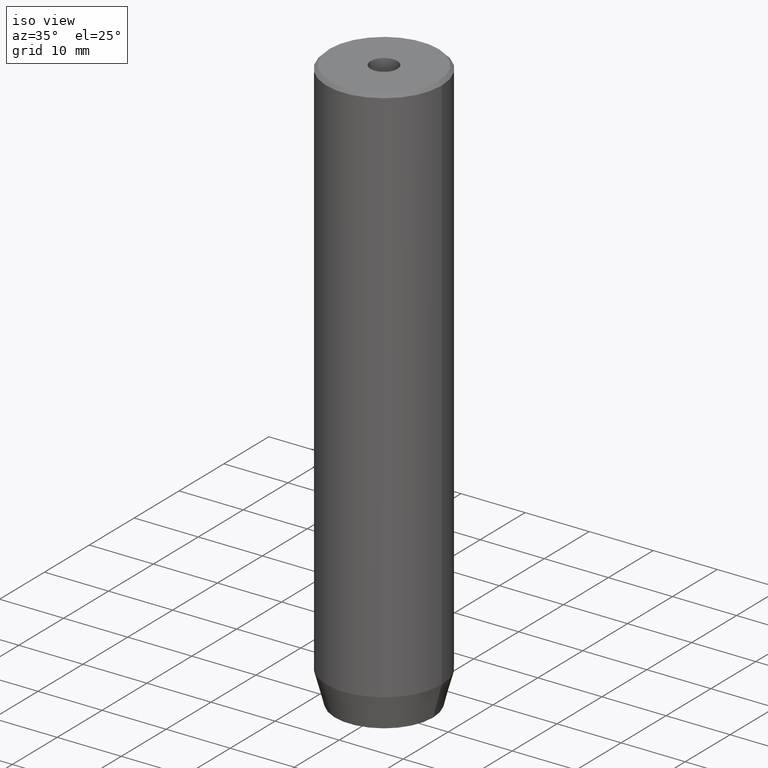
[diagram: clean part render]
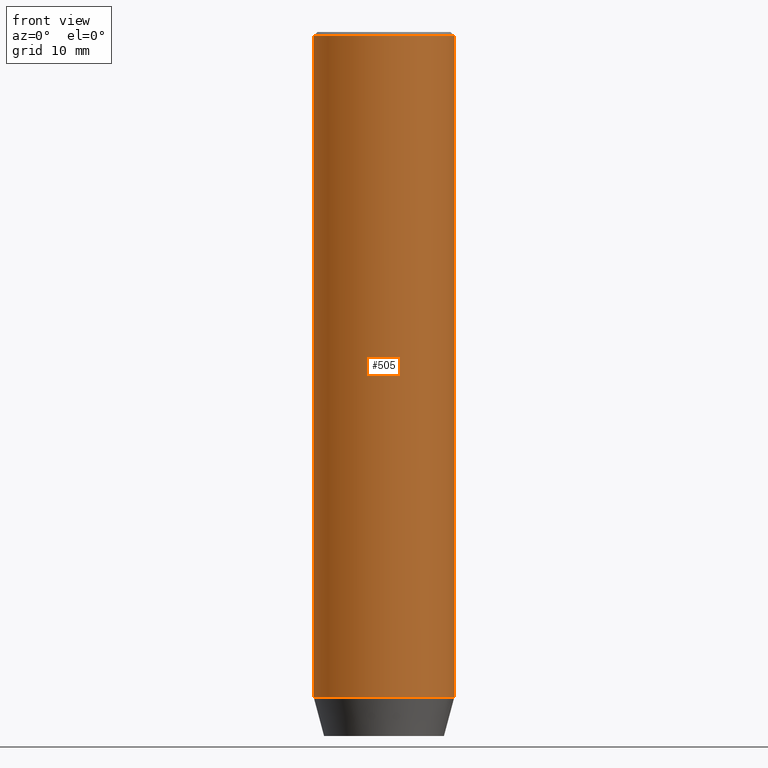
[diagram: tour spotlight — one face highlighted and labeled with its STEP entity id]
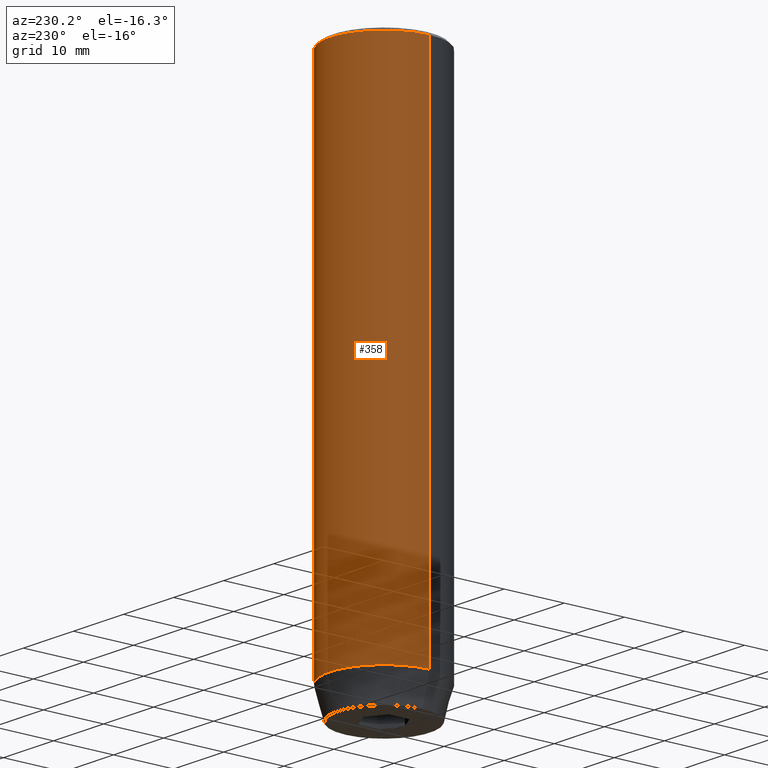
[diagram: tour spotlight — one face highlighted and labeled with its STEP entity id]
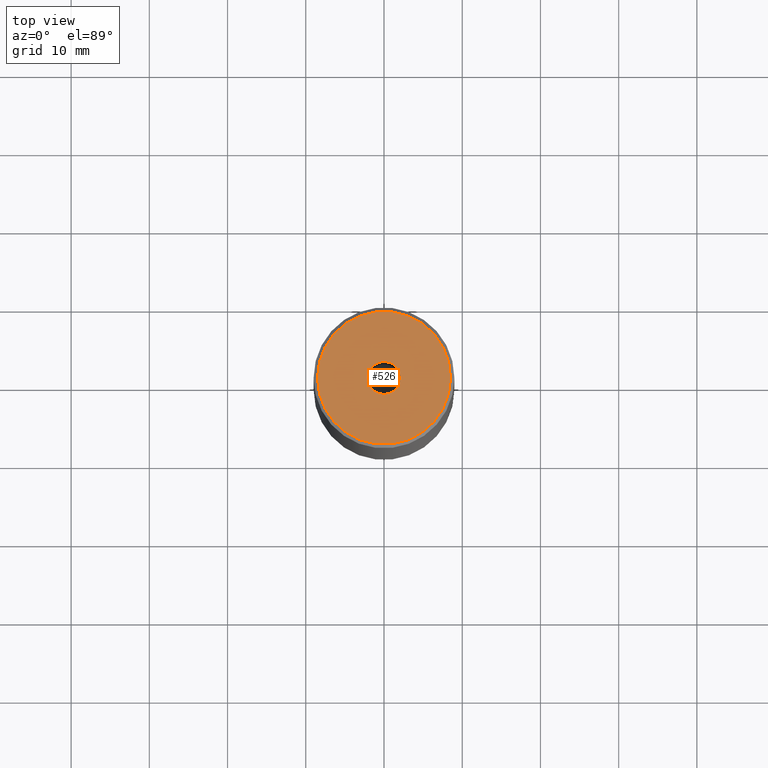
[diagram: tour spotlight — one face highlighted and labeled with its STEP entity id]
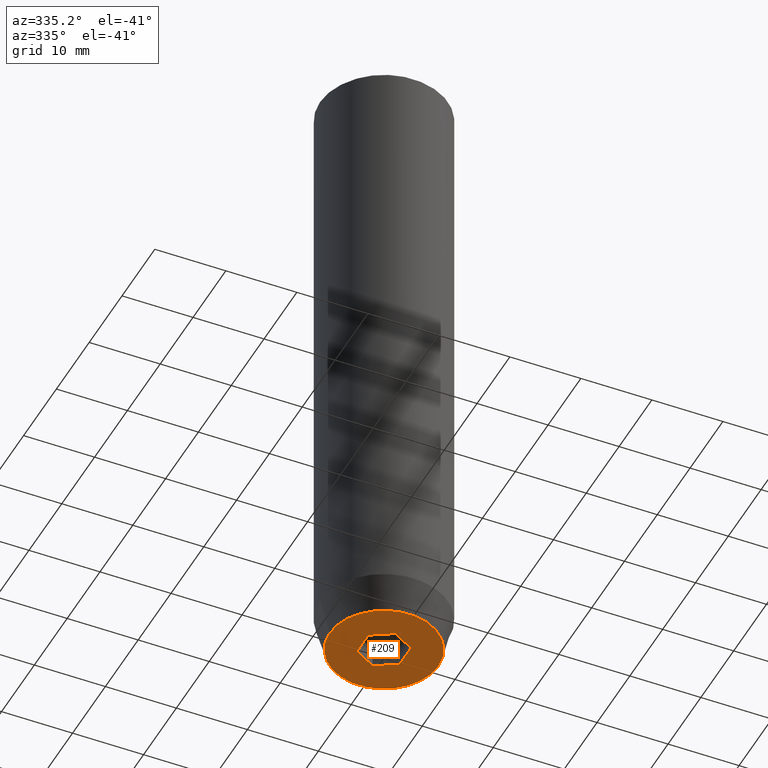
[diagram: tour spotlight — one face highlighted and labeled with its STEP entity id]
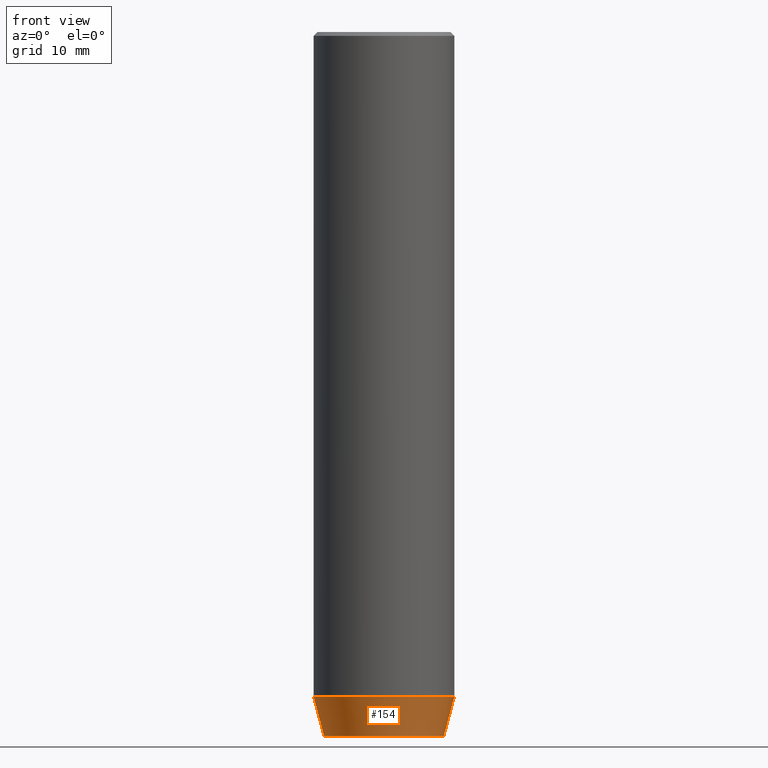
[diagram: tour spotlight — one face highlighted and labeled with its STEP entity id]
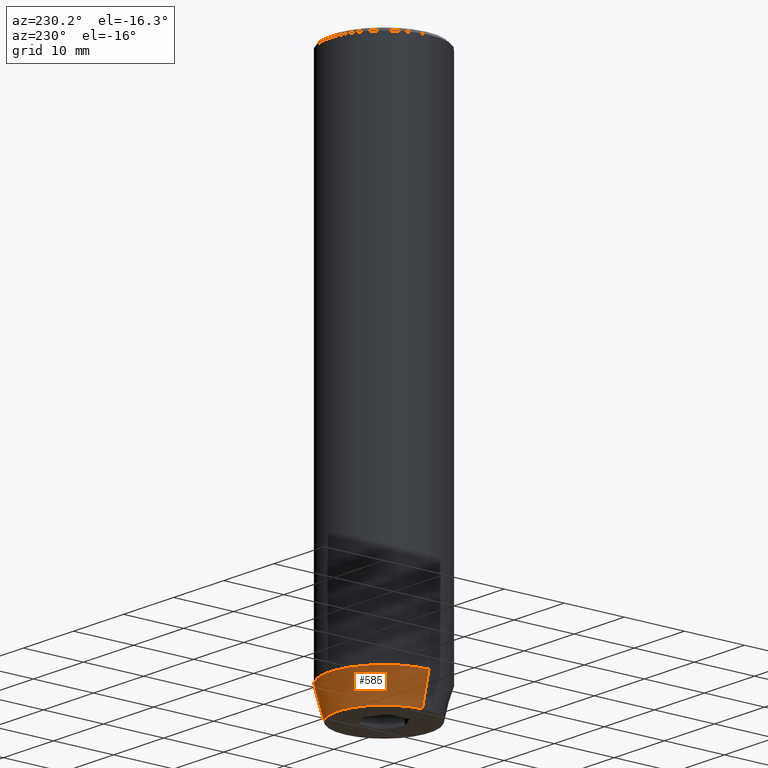
[diagram: tour spotlight — one face highlighted and labeled with its STEP entity id]
A machine part: a face-by-face anatomy tour. The part has 19 B-rep faces; the first image is the clean iso view, then the 6 largest visible faces are spotlighted one at a time (largest first), each with its STEP entity span.

Face 1 — front view, entity #505. In plain terms, the highlighted cylindrical surface (partial cylindrical patch) has radius 9 mm, axis along (-0, -0, 1).
Definition (entity closure, byte-faithful):
#2 = EDGE_LOOP ( 'NONE', ( #330, #153, #549, #481 ) ) ;
#9 = CARTESIAN_POINT ( 'NONE',  ( -9.000000000000000000, 1.102182119232617714E-15, -84.99999999999998579 ) ) ;
#20 = AXIS2_PLACEMENT_3D ( 'NONE', #303, #262, #491 ) ;
#21 = CARTESIAN_POINT ( 'NONE',  ( 9.000000000000000000, 0.000000000000000000, -0.4999999999999952260 ) ) ;
#89 = DIRECTION ( 'NONE',  ( 1.000000000000000000, 0.000000000000000000, 0.000000000000000000 ) ) ;
#91 = VECTOR ( 'NONE', #223, 1000.000000000000000 ) ;
#100 = CARTESIAN_POINT ( 'NONE',  ( -9.000000000000000000, 1.102182119232617714E-15, 0.000000000000000000 ) ) ;
#147 = VECTOR ( 'NONE', #197, 1000.000000000000000 ) ;
#153 = ORIENTED_EDGE ( 'NONE', *, *, #333, .T. ) ;
#156 = VERTEX_POINT ( 'NONE', #9 ) ;
#160 = CYLINDRICAL_SURFACE ( 'NONE', #332, 9.000000000000000000 ) ;
#170 = DIRECTION ( 'NONE',  ( -0.000000000000000000, -0.000000000000000000, 1.000000000000000000 ) ) ;
#171 = CARTESIAN_POINT ( 'NONE',  ( -9.000000000000000000, 1.102182119232617714E-15, -0.4999999999999952260 ) ) ;
#172 = EDGE_CURVE ( 'NONE', #515, #503, #383, .T. ) ;
#197 = DIRECTION ( 'NONE',  ( -0.000000000000000000, -0.000000000000000000, 1.000000000000000000 ) ) ;
#208 = CARTESIAN_POINT ( 'NONE',  ( 9.000000000000000000, 0.000000000000000000, -84.99999999999998579 ) ) ;
#223 = DIRECTION ( 'NONE',  ( -0.000000000000000000, -0.000000000000000000, 1.000000000000000000 ) ) ;
#262 = DIRECTION ( 'NONE',  ( -0.000000000000000000, -0.000000000000000000, 1.000000000000000000 ) ) ;
#269 = CIRCLE ( 'NONE', #409, 9.000000000000000000 ) ;
#276 = LINE ( 'NONE', #100, #91 ) ;
#303 = CARTESIAN_POINT ( 'NONE',  ( 0.000000000000000000, 0.000000000000000000, -84.99999999999998579 ) ) ;
#323 = VERTEX_POINT ( 'NONE', #171 ) ;
#330 = ORIENTED_EDGE ( 'NONE', *, *, #396, .F. ) ;
#332 = AXIS2_PLACEMENT_3D ( 'NONE', #475, #170, #336 ) ;
#333 = EDGE_CURVE ( 'NONE', #156, #515, #537, .T. ) ;
#336 = DIRECTION ( 'NONE',  ( 1.000000000000000000, 0.000000000000000000, 0.000000000000000000 ) ) ;
#383 = LINE ( 'NONE', #416, #147 ) ;
#389 = CARTESIAN_POINT ( 'NONE',  ( 0.000000000000000000, 0.000000000000000000, -0.4999999999999952260 ) ) ;
#396 = EDGE_CURVE ( 'NONE', #156, #323, #276, .T. ) ;
#409 = AXIS2_PLACEMENT_3D ( 'NONE', #389, #572, #89 ) ;
#416 = CARTESIAN_POINT ( 'NONE',  ( 9.000000000000000000, 0.000000000000000000, 0.000000000000000000 ) ) ;
#475 = CARTESIAN_POINT ( 'NONE',  ( 0.000000000000000000, 0.000000000000000000, 0.000000000000000000 ) ) ;
#481 = ORIENTED_EDGE ( 'NONE', *, *, #534, .T. ) ;
#491 = DIRECTION ( 'NONE',  ( 1.000000000000000000, 0.000000000000000000, 0.000000000000000000 ) ) ;
#503 = VERTEX_POINT ( 'NONE', #21 ) ;
#505 = ADVANCED_FACE ( 'NONE', ( #533 ), #160, .T. ) ;
#515 = VERTEX_POINT ( 'NONE', #208 ) ;
#533 = FACE_OUTER_BOUND ( 'NONE', #2, .T. ) ;
#534 = EDGE_CURVE ( 'NONE', #503, #323, #269, .T. ) ;
#537 = CIRCLE ( 'NONE', #20, 9.000000000000000000 ) ;
#549 = ORIENTED_EDGE ( 'NONE', *, *, #172, .T. ) ;
#572 = DIRECTION ( 'NONE',  ( 0.000000000000000000, 0.000000000000000000, -1.000000000000000000 ) ) ;

Face 2 — auxiliary view, entity #358. In plain terms, the highlighted cylindrical surface (partial cylindrical patch) has radius 9 mm, axis along (-0, -0, 1).
Definition (entity closure, byte-faithful):
#9 = CARTESIAN_POINT ( 'NONE',  ( -9.000000000000000000, 1.102182119232617714E-15, -84.99999999999998579 ) ) ;
#21 = CARTESIAN_POINT ( 'NONE',  ( 9.000000000000000000, 0.000000000000000000, -0.4999999999999952260 ) ) ;
#26 = CYLINDRICAL_SURFACE ( 'NONE', #324, 9.000000000000000000 ) ;
#39 = FACE_OUTER_BOUND ( 'NONE', #291, .T. ) ;
#62 = AXIS2_PLACEMENT_3D ( 'NONE', #340, #522, #72 ) ;
#72 = DIRECTION ( 'NONE',  ( 1.000000000000000000, 0.000000000000000000, 0.000000000000000000 ) ) ;
#91 = VECTOR ( 'NONE', #223, 1000.000000000000000 ) ;
#100 = CARTESIAN_POINT ( 'NONE',  ( -9.000000000000000000, 1.102182119232617714E-15, 0.000000000000000000 ) ) ;
#147 = VECTOR ( 'NONE', #197, 1000.000000000000000 ) ;
#156 = VERTEX_POINT ( 'NONE', #9 ) ;
#164 = DIRECTION ( 'NONE',  ( -0.000000000000000000, -0.000000000000000000, 1.000000000000000000 ) ) ;
#168 = AXIS2_PLACEMENT_3D ( 'NONE', #575, #307, #478 ) ;
#171 = CARTESIAN_POINT ( 'NONE',  ( -9.000000000000000000, 1.102182119232617714E-15, -0.4999999999999952260 ) ) ;
#172 = EDGE_CURVE ( 'NONE', #515, #503, #383, .T. ) ;
#197 = DIRECTION ( 'NONE',  ( -0.000000000000000000, -0.000000000000000000, 1.000000000000000000 ) ) ;
#207 = ORIENTED_EDGE ( 'NONE', *, *, #172, .F. ) ;
#208 = CARTESIAN_POINT ( 'NONE',  ( 9.000000000000000000, 0.000000000000000000, -84.99999999999998579 ) ) ;
#223 = DIRECTION ( 'NONE',  ( -0.000000000000000000, -0.000000000000000000, 1.000000000000000000 ) ) ;
#246 = ORIENTED_EDGE ( 'NONE', *, *, #420, .T. ) ;
#276 = LINE ( 'NONE', #100, #91 ) ;
#291 = EDGE_LOOP ( 'NONE', ( #492, #417, #246, #207 ) ) ;
#307 = DIRECTION ( 'NONE',  ( -0.000000000000000000, -0.000000000000000000, 1.000000000000000000 ) ) ;
#317 = EDGE_CURVE ( 'NONE', #515, #156, #382, .T. ) ;
#323 = VERTEX_POINT ( 'NONE', #171 ) ;
#324 = AXIS2_PLACEMENT_3D ( 'NONE', #349, #164, #397 ) ;
#340 = CARTESIAN_POINT ( 'NONE',  ( 0.000000000000000000, 0.000000000000000000, -0.4999999999999952260 ) ) ;
#349 = CARTESIAN_POINT ( 'NONE',  ( 0.000000000000000000, 0.000000000000000000, 0.000000000000000000 ) ) ;
#358 = ADVANCED_FACE ( 'NONE', ( #39 ), #26, .T. ) ;
#382 = CIRCLE ( 'NONE', #168, 9.000000000000000000 ) ;
#383 = LINE ( 'NONE', #416, #147 ) ;
#396 = EDGE_CURVE ( 'NONE', #156, #323, #276, .T. ) ;
#397 = DIRECTION ( 'NONE',  ( 1.000000000000000000, 0.000000000000000000, 0.000000000000000000 ) ) ;
#416 = CARTESIAN_POINT ( 'NONE',  ( 9.000000000000000000, 0.000000000000000000, 0.000000000000000000 ) ) ;
#417 = ORIENTED_EDGE ( 'NONE', *, *, #396, .T. ) ;
#420 = EDGE_CURVE ( 'NONE', #323, #503, #499, .T. ) ;
#478 = DIRECTION ( 'NONE',  ( 1.000000000000000000, 0.000000000000000000, 0.000000000000000000 ) ) ;
#492 = ORIENTED_EDGE ( 'NONE', *, *, #317, .T. ) ;
#499 = CIRCLE ( 'NONE', #62, 9.000000000000000000 ) ;
#503 = VERTEX_POINT ( 'NONE', #21 ) ;
#515 = VERTEX_POINT ( 'NONE', #208 ) ;
#522 = DIRECTION ( 'NONE',  ( 0.000000000000000000, 0.000000000000000000, -1.000000000000000000 ) ) ;
#575 = CARTESIAN_POINT ( 'NONE',  ( 0.000000000000000000, 0.000000000000000000, -84.99999999999998579 ) ) ;

Face 3 — top view, entity #526. In plain terms, the highlighted planar face has unit normal (0, -0, 1).
Definition (entity closure, byte-faithful):
#1 = CIRCLE ( 'NONE', #299, 8.500000000000007105 ) ;
#5 = ORIENTED_EDGE ( 'NONE', *, *, #108, .T. ) ;
#14 = DIRECTION ( 'NONE',  ( -0.000000000000000000, -0.000000000000000000, 1.000000000000000000 ) ) ;
#15 = EDGE_CURVE ( 'NONE', #277, #500, #61, .T. ) ;
#61 = CIRCLE ( 'NONE', #578, 2.099999999999998757 ) ;
#67 = DIRECTION ( 'NONE',  ( 1.000000000000000000, 0.000000000000000000, 0.000000000000000000 ) ) ;
#75 = DIRECTION ( 'NONE',  ( 0.000000000000000000, -0.000000000000000000, 1.000000000000000000 ) ) ;
#97 = ORIENTED_EDGE ( 'NONE', *, *, #188, .F. ) ;
#99 = CIRCLE ( 'NONE', #109, 2.099999999999998757 ) ;
#104 = ORIENTED_EDGE ( 'NONE', *, *, #210, .T. ) ;
#108 = EDGE_CURVE ( 'NONE', #506, #452, #1, .T. ) ;
#109 = AXIS2_PLACEMENT_3D ( 'NONE', #114, #292, #473 ) ;
#114 = CARTESIAN_POINT ( 'NONE',  ( 0.000000000000000000, 0.000000000000000000, -1.990051048614449116E-16 ) ) ;
#123 = CARTESIAN_POINT ( 'NONE',  ( -8.500000000000007105, 0.000000000000000000, 0.000000000000000000 ) ) ;
#125 = PLANE ( 'NONE',  #531 ) ;
#148 = CARTESIAN_POINT ( 'NONE',  ( 8.500000000000007105, 1.071565949253934321E-15, 0.000000000000000000 ) ) ;
#163 = FACE_OUTER_BOUND ( 'NONE', #343, .T. ) ;
#188 = EDGE_CURVE ( 'NONE', #500, #277, #99, .T. ) ;
#210 = EDGE_CURVE ( 'NONE', #452, #506, #218, .T. ) ;
#212 = CARTESIAN_POINT ( 'NONE',  ( 2.099999999999998757, 0.000000000000000000, -1.990051048614449116E-16 ) ) ;
#214 = DIRECTION ( 'NONE',  ( 1.000000000000000000, 0.000000000000000000, 0.000000000000000000 ) ) ;
#218 = CIRCLE ( 'NONE', #448, 8.500000000000007105 ) ;
#254 = CARTESIAN_POINT ( 'NONE',  ( -2.099999999999998757, 2.571758278209440478E-16, -1.990051048614449116E-16 ) ) ;
#277 = VERTEX_POINT ( 'NONE', #254 ) ;
#280 = EDGE_LOOP ( 'NONE', ( #97, #525 ) ) ;
#292 = DIRECTION ( 'NONE',  ( -0.000000000000000000, -0.000000000000000000, 1.000000000000000000 ) ) ;
#299 = AXIS2_PLACEMENT_3D ( 'NONE', #422, #14, #565 ) ;
#312 = DIRECTION ( 'NONE',  ( 1.000000000000000000, 0.000000000000000000, 0.000000000000000000 ) ) ;
#343 = EDGE_LOOP ( 'NONE', ( #5, #104 ) ) ;
#366 = CARTESIAN_POINT ( 'NONE',  ( 0.000000000000000000, 0.000000000000000000, -1.990051048614449116E-16 ) ) ;
#379 = CARTESIAN_POINT ( 'NONE',  ( 0.000000000000000000, 0.000000000000000000, 0.000000000000000000 ) ) ;
#422 = CARTESIAN_POINT ( 'NONE',  ( 0.000000000000000000, 0.000000000000000000, 0.000000000000000000 ) ) ;
#431 = FACE_BOUND ( 'NONE', #280, .T. ) ;
#448 = AXIS2_PLACEMENT_3D ( 'NONE', #379, #559, #67 ) ;
#452 = VERTEX_POINT ( 'NONE', #148 ) ;
#473 = DIRECTION ( 'NONE',  ( 1.000000000000000000, 0.000000000000000000, 0.000000000000000000 ) ) ;
#479 = CARTESIAN_POINT ( 'NONE',  ( 0.000000000000000000, 0.000000000000000000, 0.000000000000000000 ) ) ;
#500 = VERTEX_POINT ( 'NONE', #212 ) ;
#506 = VERTEX_POINT ( 'NONE', #123 ) ;
#525 = ORIENTED_EDGE ( 'NONE', *, *, #15, .F. ) ;
#526 = ADVANCED_FACE ( 'NONE', ( #431, #163 ), #125, .T. ) ;
#531 = AXIS2_PLACEMENT_3D ( 'NONE', #479, #75, #214 ) ;
#548 = DIRECTION ( 'NONE',  ( -0.000000000000000000, -0.000000000000000000, 1.000000000000000000 ) ) ;
#559 = DIRECTION ( 'NONE',  ( -0.000000000000000000, -0.000000000000000000, 1.000000000000000000 ) ) ;
#565 = DIRECTION ( 'NONE',  ( 1.000000000000000000, 0.000000000000000000, 0.000000000000000000 ) ) ;
#578 = AXIS2_PLACEMENT_3D ( 'NONE', #366, #548, #312 ) ;

Face 4 — auxiliary view, entity #209. In plain terms, the highlighted planar face has unit normal (0, 0, -1).
Definition (entity closure, byte-faithful):
#7 = DIRECTION ( 'NONE',  ( -0.8660254037844385966, -0.5000000000000001110, 0.000000000000000000 ) ) ;
#30 = VECTOR ( 'NONE', #7, 1000.000000000000000 ) ;
#37 = EDGE_CURVE ( 'NONE', #190, #355, #390, .T. ) ;
#45 = EDGE_CURVE ( 'NONE', #586, #294, #360, .T. ) ;
#63 = ORIENTED_EDGE ( 'NONE', *, *, #232, .F. ) ;
#64 = DIRECTION ( 'NONE',  ( 0.000000000000000000, 0.000000000000000000, -1.000000000000000000 ) ) ;
#115 = EDGE_LOOP ( 'NONE', ( #263, #328, #251, #134, #373, #455 ) ) ;
#127 = CARTESIAN_POINT ( 'NONE',  ( -3.000000000000000444, -7.511572993685800087E-16, -90.00000000000000000 ) ) ;
#129 = DIRECTION ( 'NONE',  ( -0.000000000000000000, -0.000000000000000000, 1.000000000000000000 ) ) ;
#134 = ORIENTED_EDGE ( 'NONE', *, *, #412, .F. ) ;
#135 = VECTOR ( 'NONE', #357, 1000.000000000000000 ) ;
#136 = VECTOR ( 'NONE', #444, 1000.000000000000000 ) ;
#140 = VERTEX_POINT ( 'NONE', #419 ) ;
#157 = CIRCLE ( 'NONE', #467, 7.660254037844380193 ) ;
#173 = DIRECTION ( 'NONE',  ( 0.8660254037844387076, 0.4999999999999999445, 0.000000000000000000 ) ) ;
#176 = AXIS2_PLACEMENT_3D ( 'NONE', #179, #508, #234 ) ;
#179 = CARTESIAN_POINT ( 'NONE',  ( 0.000000000000000000, 0.000000000000000000, -90.00000000000000000 ) ) ;
#190 = VERTEX_POINT ( 'NONE', #469 ) ;
#203 = ORIENTED_EDGE ( 'NONE', *, *, #37, .F. ) ;
#205 = AXIS2_PLACEMENT_3D ( 'NONE', #516, #64, #337 ) ;
#206 = LINE ( 'NONE', #568, #407 ) ;
#209 = ADVANCED_FACE ( 'NONE', ( #286, #327 ), #329, .T. ) ;
#229 = EDGE_CURVE ( 'NONE', #367, #586, #206, .T. ) ;
#232 = EDGE_CURVE ( 'NONE', #355, #190, #157, .T. ) ;
#234 = DIRECTION ( 'NONE',  ( 1.000000000000000000, 0.000000000000000000, 0.000000000000000000 ) ) ;
#248 = LINE ( 'NONE', #344, #401 ) ;
#251 = ORIENTED_EDGE ( 'NONE', *, *, #524, .F. ) ;
#263 = ORIENTED_EDGE ( 'NONE', *, *, #229, .F. ) ;
#264 = CARTESIAN_POINT ( 'NONE',  ( -7.660254037844380193, 1.020146339021394272E-15, -90.00000000000000000 ) ) ;
#267 = CARTESIAN_POINT ( 'NONE',  ( 1.500000000000000222, 2.598076211353315568, -90.00000000000000000 ) ) ;
#283 = CARTESIAN_POINT ( 'NONE',  ( 3.000000000000000000, -1.732050807568876527, -90.00000000000000000 ) ) ;
#286 = FACE_BOUND ( 'NONE', #115, .T. ) ;
#294 = VERTEX_POINT ( 'NONE', #310 ) ;
#302 = DIRECTION ( 'NONE',  ( -0.8660254037844385966, 0.5000000000000001110, 0.000000000000000000 ) ) ;
#306 = CARTESIAN_POINT ( 'NONE',  ( 0.000000000000000000, 3.464101615137754386, -90.00000000000000000 ) ) ;
#310 = CARTESIAN_POINT ( 'NONE',  ( 3.000000000000000000, 1.732050807568876527, -90.00000000000000000 ) ) ;
#327 = FACE_OUTER_BOUND ( 'NONE', #517, .T. ) ;
#328 = ORIENTED_EDGE ( 'NONE', *, *, #564, .F. ) ;
#329 = PLANE ( 'NONE',  #205 ) ;
#337 = DIRECTION ( 'NONE',  ( -1.000000000000000000, 0.000000000000000000, -0.000000000000000000 ) ) ;
#342 = CARTESIAN_POINT ( 'NONE',  ( -3.000000000000000888, 1.732050807568876527, -90.00000000000000000 ) ) ;
#344 = CARTESIAN_POINT ( 'NONE',  ( 3.000000000000000000, 0.000000000000000000, -90.00000000000000000 ) ) ;
#348 = DIRECTION ( 'NONE',  ( 0.000000000000000000, -1.000000000000000000, 0.000000000000000000 ) ) ;
#350 = CARTESIAN_POINT ( 'NONE',  ( -3.000000000000000000, -1.732050807568877859, -90.00000000000000000 ) ) ;
#355 = VERTEX_POINT ( 'NONE', #264 ) ;
#357 = DIRECTION ( 'NONE',  ( 0.8660254037844385966, -0.5000000000000001110, 0.000000000000000000 ) ) ;
#360 = LINE ( 'NONE', #267, #135 ) ;
#367 = VERTEX_POINT ( 'NONE', #342 ) ;
#373 = ORIENTED_EDGE ( 'NONE', *, *, #485, .F. ) ;
#386 = CARTESIAN_POINT ( 'NONE',  ( 0.000000000000000000, 0.000000000000000000, -90.00000000000000000 ) ) ;
#390 = CIRCLE ( 'NONE', #176, 7.660254037844380193 ) ;
#401 = VECTOR ( 'NONE', #348, 1000.000000000000000 ) ;
#407 = VECTOR ( 'NONE', #173, 999.9999999999998863 ) ;
#412 = EDGE_CURVE ( 'NONE', #495, #140, #497, .T. ) ;
#413 = LINE ( 'NONE', #567, #544 ) ;
#419 = CARTESIAN_POINT ( 'NONE',  ( -2.168404344971008868E-16, -3.464101615137754830, -90.00000000000000000 ) ) ;
#444 = DIRECTION ( 'NONE',  ( -2.503857664561932376E-16, 1.000000000000000000, 0.000000000000000000 ) ) ;
#455 = ORIENTED_EDGE ( 'NONE', *, *, #45, .F. ) ;
#467 = AXIS2_PLACEMENT_3D ( 'NONE', #386, #129, #576 ) ;
#469 = CARTESIAN_POINT ( 'NONE',  ( 7.660254037844380193, 0.000000000000000000, -90.00000000000000000 ) ) ;
#485 = EDGE_CURVE ( 'NONE', #294, #495, #248, .T. ) ;
#486 = LINE ( 'NONE', #127, #136 ) ;
#495 = VERTEX_POINT ( 'NONE', #283 ) ;
#497 = LINE ( 'NONE', #553, #30 ) ;
#508 = DIRECTION ( 'NONE',  ( -0.000000000000000000, -0.000000000000000000, 1.000000000000000000 ) ) ;
#516 = CARTESIAN_POINT ( 'NONE',  ( 0.000000000000000000, 7.660254037844380193, -90.00000000000000000 ) ) ;
#517 = EDGE_LOOP ( 'NONE', ( #203, #63 ) ) ;
#524 = EDGE_CURVE ( 'NONE', #140, #560, #413, .T. ) ;
#544 = VECTOR ( 'NONE', #302, 1000.000000000000000 ) ;
#553 = CARTESIAN_POINT ( 'NONE',  ( 1.500000000000000222, -2.598076211353315568, -90.00000000000000000 ) ) ;
#560 = VERTEX_POINT ( 'NONE', #350 ) ;
#564 = EDGE_CURVE ( 'NONE', #560, #367, #486, .T. ) ;
#567 = CARTESIAN_POINT ( 'NONE',  ( -1.500000000000000666, -2.598076211353316456, -90.00000000000000000 ) ) ;
#568 = CARTESIAN_POINT ( 'NONE',  ( -1.499999999999999556, 2.598076211353316012, -90.00000000000000000 ) ) ;
#576 = DIRECTION ( 'NONE',  ( 1.000000000000000000, 0.000000000000000000, 0.000000000000000000 ) ) ;
#586 = VERTEX_POINT ( 'NONE', #306 ) ;

Face 5 — front view, entity #154. In plain terms, the highlighted conical surface has half-angle 15 deg.
Definition (entity closure, byte-faithful):
#8 = CARTESIAN_POINT ( 'NONE',  ( -9.000000000000000000, 1.102182119232617714E-15, -84.99999999999998579 ) ) ;
#9 = CARTESIAN_POINT ( 'NONE',  ( -9.000000000000000000, 1.102182119232617714E-15, -84.99999999999998579 ) ) ;
#20 = AXIS2_PLACEMENT_3D ( 'NONE', #303, #262, #491 ) ;
#29 = VECTOR ( 'NONE', #538, 1000.000000000000114 ) ;
#38 = EDGE_CURVE ( 'NONE', #355, #156, #181, .T. ) ;
#55 = ORIENTED_EDGE ( 'NONE', *, *, #333, .F. ) ;
#88 = DIRECTION ( 'NONE',  ( -0.2588190451025214611, 3.169619151431774186E-17, 0.9659258262890679791 ) ) ;
#120 = ORIENTED_EDGE ( 'NONE', *, *, #38, .F. ) ;
#129 = DIRECTION ( 'NONE',  ( -0.000000000000000000, -0.000000000000000000, 1.000000000000000000 ) ) ;
#154 = ADVANCED_FACE ( 'NONE', ( #240 ), #288, .T. ) ;
#155 = CARTESIAN_POINT ( 'NONE',  ( 0.000000000000000000, 0.000000000000000000, -84.99999999999998579 ) ) ;
#156 = VERTEX_POINT ( 'NONE', #9 ) ;
#157 = CIRCLE ( 'NONE', #467, 7.660254037844380193 ) ;
#181 = LINE ( 'NONE', #8, #260 ) ;
#184 = ORIENTED_EDGE ( 'NONE', *, *, #232, .T. ) ;
#190 = VERTEX_POINT ( 'NONE', #469 ) ;
#208 = CARTESIAN_POINT ( 'NONE',  ( 9.000000000000000000, 0.000000000000000000, -84.99999999999998579 ) ) ;
#232 = EDGE_CURVE ( 'NONE', #355, #190, #157, .T. ) ;
#235 = DIRECTION ( 'NONE',  ( 1.000000000000000000, 0.000000000000000000, 0.000000000000000000 ) ) ;
#240 = FACE_OUTER_BOUND ( 'NONE', #281, .T. ) ;
#260 = VECTOR ( 'NONE', #88, 1000.000000000000114 ) ;
#262 = DIRECTION ( 'NONE',  ( -0.000000000000000000, -0.000000000000000000, 1.000000000000000000 ) ) ;
#264 = CARTESIAN_POINT ( 'NONE',  ( -7.660254037844380193, 1.020146339021394272E-15, -90.00000000000000000 ) ) ;
#270 = ORIENTED_EDGE ( 'NONE', *, *, #295, .T. ) ;
#281 = EDGE_LOOP ( 'NONE', ( #120, #184, #270, #55 ) ) ;
#288 = CONICAL_SURFACE ( 'NONE', #345, 9.000000000000000000, 0.2617993877991502405 ) ;
#290 = DIRECTION ( 'NONE',  ( -0.000000000000000000, -0.000000000000000000, 1.000000000000000000 ) ) ;
#295 = EDGE_CURVE ( 'NONE', #190, #515, #432, .T. ) ;
#303 = CARTESIAN_POINT ( 'NONE',  ( 0.000000000000000000, 0.000000000000000000, -84.99999999999998579 ) ) ;
#333 = EDGE_CURVE ( 'NONE', #156, #515, #537, .T. ) ;
#345 = AXIS2_PLACEMENT_3D ( 'NONE', #155, #290, #235 ) ;
#355 = VERTEX_POINT ( 'NONE', #264 ) ;
#386 = CARTESIAN_POINT ( 'NONE',  ( 0.000000000000000000, 0.000000000000000000, -90.00000000000000000 ) ) ;
#388 = CARTESIAN_POINT ( 'NONE',  ( 9.000000000000000000, 0.000000000000000000, -84.99999999999998579 ) ) ;
#432 = LINE ( 'NONE', #388, #29 ) ;
#467 = AXIS2_PLACEMENT_3D ( 'NONE', #386, #129, #576 ) ;
#469 = CARTESIAN_POINT ( 'NONE',  ( 7.660254037844380193, 0.000000000000000000, -90.00000000000000000 ) ) ;
#491 = DIRECTION ( 'NONE',  ( 1.000000000000000000, 0.000000000000000000, 0.000000000000000000 ) ) ;
#515 = VERTEX_POINT ( 'NONE', #208 ) ;
#537 = CIRCLE ( 'NONE', #20, 9.000000000000000000 ) ;
#538 = DIRECTION ( 'NONE',  ( 0.2588190451025214611, 0.000000000000000000, 0.9659258262890679791 ) ) ;
#576 = DIRECTION ( 'NONE',  ( 1.000000000000000000, 0.000000000000000000, 0.000000000000000000 ) ) ;

Face 6 — auxiliary view, entity #585. In plain terms, the highlighted conical surface has half-angle 15 deg.
Definition (entity closure, byte-faithful):
#8 = CARTESIAN_POINT ( 'NONE',  ( -9.000000000000000000, 1.102182119232617714E-15, -84.99999999999998579 ) ) ;
#9 = CARTESIAN_POINT ( 'NONE',  ( -9.000000000000000000, 1.102182119232617714E-15, -84.99999999999998579 ) ) ;
#10 = AXIS2_PLACEMENT_3D ( 'NONE', #352, #221, #393 ) ;
#23 = ORIENTED_EDGE ( 'NONE', *, *, #38, .T. ) ;
#29 = VECTOR ( 'NONE', #538, 1000.000000000000114 ) ;
#32 = ORIENTED_EDGE ( 'NONE', *, *, #317, .F. ) ;
#37 = EDGE_CURVE ( 'NONE', #190, #355, #390, .T. ) ;
#38 = EDGE_CURVE ( 'NONE', #355, #156, #181, .T. ) ;
#51 = ORIENTED_EDGE ( 'NONE', *, *, #295, .F. ) ;
#88 = DIRECTION ( 'NONE',  ( -0.2588190451025214611, 3.169619151431774186E-17, 0.9659258262890679791 ) ) ;
#156 = VERTEX_POINT ( 'NONE', #9 ) ;
#168 = AXIS2_PLACEMENT_3D ( 'NONE', #575, #307, #478 ) ;
#174 = FACE_OUTER_BOUND ( 'NONE', #301, .T. ) ;
#176 = AXIS2_PLACEMENT_3D ( 'NONE', #179, #508, #234 ) ;
#179 = CARTESIAN_POINT ( 'NONE',  ( 0.000000000000000000, 0.000000000000000000, -90.00000000000000000 ) ) ;
#181 = LINE ( 'NONE', #8, #260 ) ;
#190 = VERTEX_POINT ( 'NONE', #469 ) ;
#208 = CARTESIAN_POINT ( 'NONE',  ( 9.000000000000000000, 0.000000000000000000, -84.99999999999998579 ) ) ;
#221 = DIRECTION ( 'NONE',  ( -0.000000000000000000, -0.000000000000000000, 1.000000000000000000 ) ) ;
#234 = DIRECTION ( 'NONE',  ( 1.000000000000000000, 0.000000000000000000, 0.000000000000000000 ) ) ;
#260 = VECTOR ( 'NONE', #88, 1000.000000000000114 ) ;
#264 = CARTESIAN_POINT ( 'NONE',  ( -7.660254037844380193, 1.020146339021394272E-15, -90.00000000000000000 ) ) ;
#295 = EDGE_CURVE ( 'NONE', #190, #515, #432, .T. ) ;
#301 = EDGE_LOOP ( 'NONE', ( #460, #23, #32, #51 ) ) ;
#307 = DIRECTION ( 'NONE',  ( -0.000000000000000000, -0.000000000000000000, 1.000000000000000000 ) ) ;
#317 = EDGE_CURVE ( 'NONE', #515, #156, #382, .T. ) ;
#352 = CARTESIAN_POINT ( 'NONE',  ( 0.000000000000000000, 0.000000000000000000, -84.99999999999998579 ) ) ;
#355 = VERTEX_POINT ( 'NONE', #264 ) ;
#382 = CIRCLE ( 'NONE', #168, 9.000000000000000000 ) ;
#388 = CARTESIAN_POINT ( 'NONE',  ( 9.000000000000000000, 0.000000000000000000, -84.99999999999998579 ) ) ;
#390 = CIRCLE ( 'NONE', #176, 7.660254037844380193 ) ;
#393 = DIRECTION ( 'NONE',  ( 1.000000000000000000, 0.000000000000000000, 0.000000000000000000 ) ) ;
#432 = LINE ( 'NONE', #388, #29 ) ;
#439 = CONICAL_SURFACE ( 'NONE', #10, 9.000000000000000000, 0.2617993877991502405 ) ;
#460 = ORIENTED_EDGE ( 'NONE', *, *, #37, .T. ) ;
#469 = CARTESIAN_POINT ( 'NONE',  ( 7.660254037844380193, 0.000000000000000000, -90.00000000000000000 ) ) ;
#478 = DIRECTION ( 'NONE',  ( 1.000000000000000000, 0.000000000000000000, 0.000000000000000000 ) ) ;
#508 = DIRECTION ( 'NONE',  ( -0.000000000000000000, -0.000000000000000000, 1.000000000000000000 ) ) ;
#515 = VERTEX_POINT ( 'NONE', #208 ) ;
#538 = DIRECTION ( 'NONE',  ( 0.2588190451025214611, 0.000000000000000000, 0.9659258262890679791 ) ) ;
#575 = CARTESIAN_POINT ( 'NONE',  ( 0.000000000000000000, 0.000000000000000000, -84.99999999999998579 ) ) ;
#585 = ADVANCED_FACE ( 'NONE', ( #174 ), #439, .T. ) ;